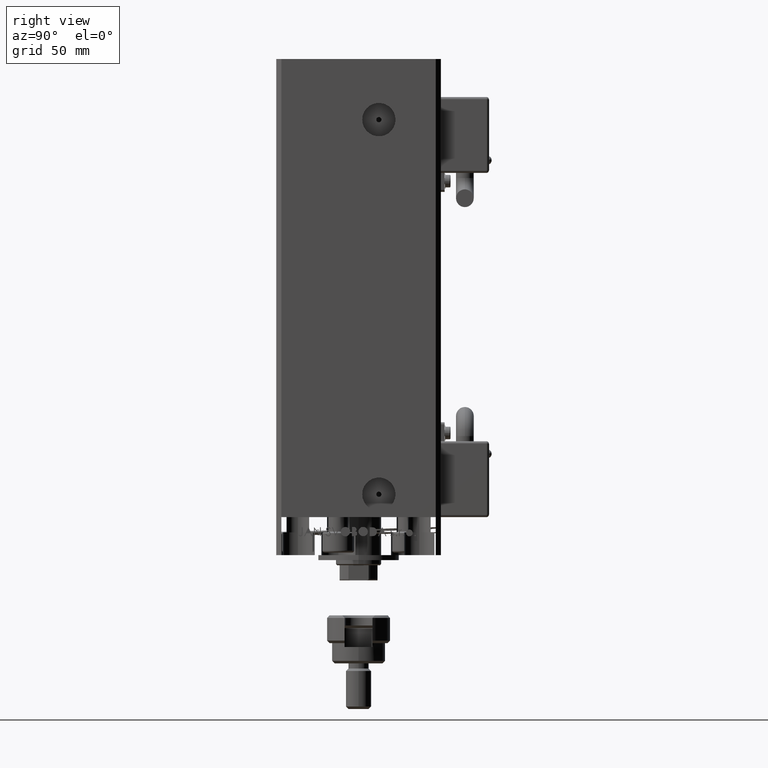
[diagram: clean part render]
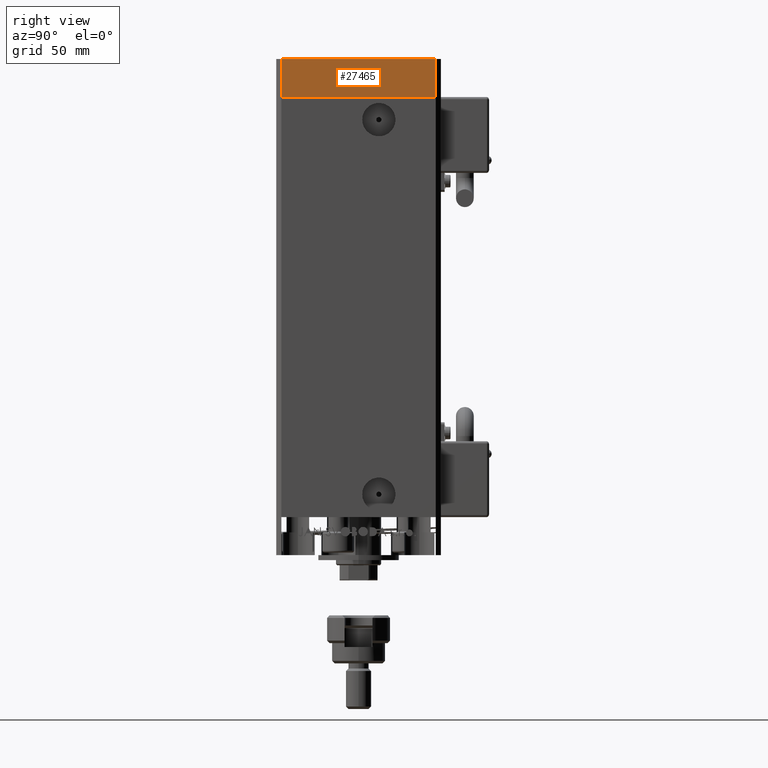
[diagram: same view with one face highlighted and labeled with its STEP entity id]
A machine part, right view. The second image highlights one B-rep face of the part: STEP entity #27465.
In plain terms, the highlighted planar face has unit normal (1, 0, 0).
Its self-contained STEP definition (entity closure, byte-faithful):
#82 = CARTESIAN_POINT ( 'NONE',  ( 37.50000000000001421, -30.50000000000000711, 0.000000000000000000 ) ) ;
#462 = FACE_OUTER_BOUND ( 'NONE', #49757, .T. ) ;
#731 = PLANE ( 'NONE',  #36530 ) ;
#1478 = VERTEX_POINT ( 'NONE', #7265 ) ;
#2021 = ORIENTED_EDGE ( 'NONE', *, *, #36682, .F. ) ;
#7265 = CARTESIAN_POINT ( 'NONE',  ( 37.50000000000001421, -30.50000000000000711, 0.000000000000000000 ) ) ;
#9324 = CARTESIAN_POINT ( 'NONE',  ( 37.49999999999992184, 30.50000000000001066, 0.000000000000000000 ) ) ;
#12229 = CARTESIAN_POINT ( 'NONE',  ( 37.49999999999992184, 30.50000000000001066, -15.00000000000000000 ) ) ;
#13381 = VECTOR ( 'NONE', #34382, 1000.000000000000000 ) ;
#16116 = EDGE_CURVE ( 'NONE', #19347, #51000, #22609, .T. ) ;
#18149 = VERTEX_POINT ( 'NONE', #9324 ) ;
#19347 = VERTEX_POINT ( 'NONE', #26414 ) ;
#21245 = DIRECTION ( 'NONE',  ( 1.000000000000000000, 1.478780668045803018E-15, -0.000000000000000000 ) ) ;
#22609 = LINE ( 'NONE', #25862, #37084 ) ;
#24483 = VECTOR ( 'NONE', #29234, 1000.000000000000000 ) ;
#25228 = EDGE_CURVE ( 'NONE', #1478, #18149, #41958, .T. ) ;
#25862 = CARTESIAN_POINT ( 'NONE',  ( 37.50000000000001421, -30.50000000000000711, -15.00000000000000000 ) ) ;
#26289 = VECTOR ( 'NONE', #44414, 1000.000000000000000 ) ;
#26414 = CARTESIAN_POINT ( 'NONE',  ( 37.50000000000001421, -30.50000000000000711, -15.00000000000000000 ) ) ;
#27465 = ADVANCED_FACE ( 'NONE', ( #462 ), #731, .T. ) ;
#28072 = DIRECTION ( 'NONE',  ( -1.478780668045803018E-15, 1.000000000000000000, 0.000000000000000000 ) ) ;
#28373 = ORIENTED_EDGE ( 'NONE', *, *, #36508, .T. ) ;
#29234 = DIRECTION ( 'NONE',  ( -1.478780668045802821E-15, 1.000000000000000000, 0.000000000000000000 ) ) ;
#31963 = LINE ( 'NONE', #12229, #26289 ) ;
#34382 = DIRECTION ( 'NONE',  ( 0.000000000000000000, 0.000000000000000000, 1.000000000000000000 ) ) ;
#35440 = CARTESIAN_POINT ( 'NONE',  ( 37.50000000000001421, -30.50000000000000711, -15.00000000000000000 ) ) ;
#36508 = EDGE_CURVE ( 'NONE', #51000, #18149, #31963, .T. ) ;
#36530 = AXIS2_PLACEMENT_3D ( 'NONE', #41794, #21245, #28072 ) ;
#36682 = EDGE_CURVE ( 'NONE', #19347, #1478, #47091, .T. ) ;
#37084 = VECTOR ( 'NONE', #42883, 1000.000000000000000 ) ;
#41794 = CARTESIAN_POINT ( 'NONE',  ( 37.50000000000001421, -30.50000000000000711, -15.00000000000000000 ) ) ;
#41958 = LINE ( 'NONE', #82, #24483 ) ;
#42883 = DIRECTION ( 'NONE',  ( -1.478780668045802821E-15, 1.000000000000000000, 0.000000000000000000 ) ) ;
#44414 = DIRECTION ( 'NONE',  ( 0.000000000000000000, 0.000000000000000000, 1.000000000000000000 ) ) ;
#45612 = ORIENTED_EDGE ( 'NONE', *, *, #16116, .T. ) ;
#46419 = CARTESIAN_POINT ( 'NONE',  ( 37.49999999999992184, 30.50000000000001066, -15.00000000000000000 ) ) ;
#47091 = LINE ( 'NONE', #35440, #13381 ) ;
#47403 = ORIENTED_EDGE ( 'NONE', *, *, #25228, .F. ) ;
#49757 = EDGE_LOOP ( 'NONE', ( #47403, #2021, #45612, #28373 ) ) ;
#51000 = VERTEX_POINT ( 'NONE', #46419 ) ;